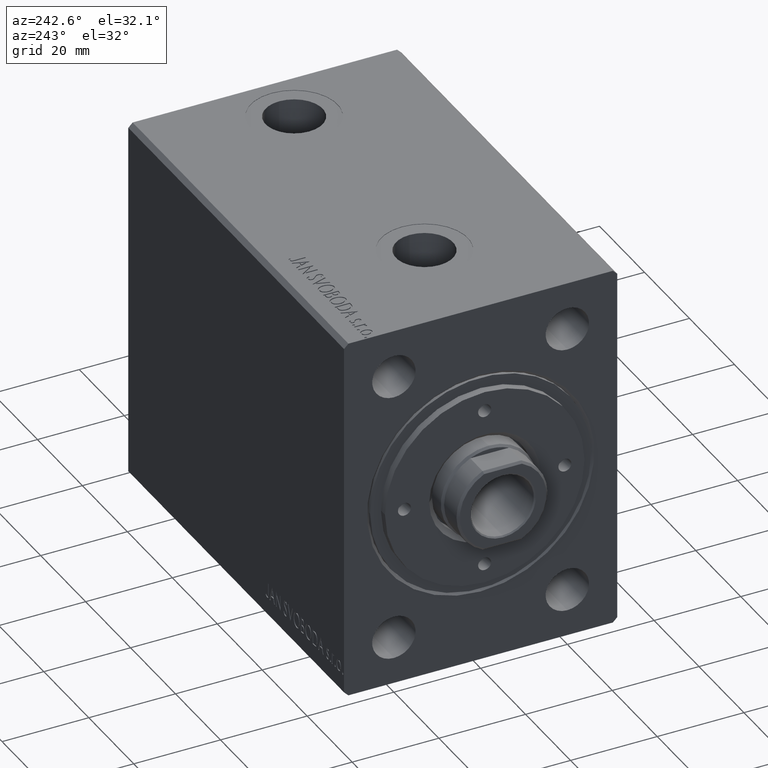
[diagram: clean part render]
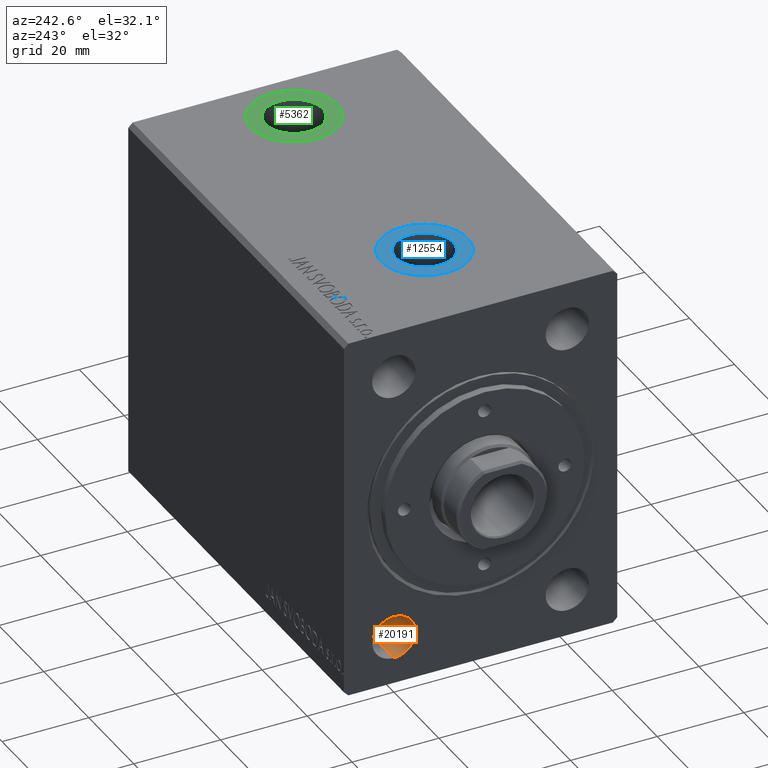
[diagram: same view with three faces highlighted in distinct colors, each labeled with its STEP entity id]
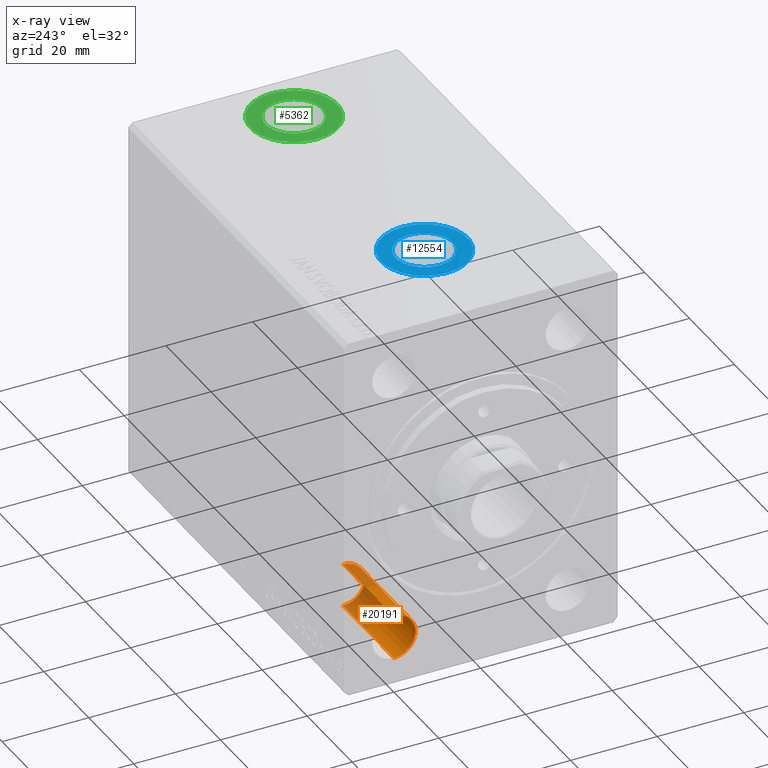
[diagram: x-ray of the same camera — body ghosted, the three highlighted faces saturated]
A machine part, auxiliary view with three faces highlighted in distinct colors.
The next image is the same camera in x-ray (body ghosted, the three faces saturated) — at least one of them is partly hidden behind the body in this view.
Their STEP definitions:

[orange] entity #20191 — the highlighted cylindrical surface (edge-blend (fillet) strip) has radius 5 mm, axis along (-1, -0, -0).
#111 = DIRECTION ( 'NONE',  ( 0.000000000000000000, 0.000000000000000000, 1.000000000000000000 ) ) ;
#117 = VERTEX_POINT ( 'NONE', #15542 ) ;
#909 = DIRECTION ( 'NONE',  ( -1.000000000000000000, -0.000000000000000000, -0.000000000000000000 ) ) ;
#3813 = CARTESIAN_POINT ( 'NONE',  ( 1.224646799147350495E-16, 19.99999999999999645, -31.50000000000000000 ) ) ;
#4249 = LINE ( 'NONE', #31413, #11044 ) ;
#6271 = ORIENTED_EDGE ( 'NONE', *, *, #33155, .T. ) ;
#6534 = CARTESIAN_POINT ( 'NONE',  ( 1.224646799147350495E-16, 19.99999999999999645, -36.50000000000000000 ) ) ;
#6992 = VERTEX_POINT ( 'NONE', #16369 ) ;
#7603 = DIRECTION ( 'NONE',  ( -1.000000000000000000, -0.000000000000000000, -0.000000000000000000 ) ) ;
#7683 = FACE_OUTER_BOUND ( 'NONE', #32438, .T. ) ;
#9516 = VERTEX_POINT ( 'NONE', #6534 ) ;
#11044 = VECTOR ( 'NONE', #909, 1000.000000000000000 ) ;
#11850 = EDGE_CURVE ( 'NONE', #6992, #117, #36429, .T. ) ;
#12815 = CARTESIAN_POINT ( 'NONE',  ( 0.000000000000000000, 19.99999999999999645, -26.50000000000000355 ) ) ;
#13233 = DIRECTION ( 'NONE',  ( -1.000000000000000000, -0.000000000000000000, -0.000000000000000000 ) ) ;
#13696 = DIRECTION ( 'NONE',  ( -1.000000000000000000, -0.000000000000000000, -0.000000000000000000 ) ) ;
#14935 = DIRECTION ( 'NONE',  ( 0.000000000000000000, 0.000000000000000000, 1.000000000000000000 ) ) ;
#15542 = CARTESIAN_POINT ( 'NONE',  ( 1.224646799147350495E-16, 19.99999999999999645, -26.50000000000000355 ) ) ;
#15658 = AXIS2_PLACEMENT_3D ( 'NONE', #24826, #13696, #111 ) ;
#16369 = CARTESIAN_POINT ( 'NONE',  ( 22.67000000000000171, 19.99999999999999645, -26.50000000000000711 ) ) ;
#18136 = CYLINDRICAL_SURFACE ( 'NONE', #15658, 4.999999999999997335 ) ;
#19472 = DIRECTION ( 'NONE',  ( 0.000000000000000000, 0.000000000000000000, 1.000000000000000000 ) ) ;
#20191 = ADVANCED_FACE ( 'NONE', ( #7683 ), #18136, .F. ) ;
#21897 = EDGE_CURVE ( 'NONE', #43128, #6992, #39875, .T. ) ;
#23285 = DIRECTION ( 'NONE',  ( -1.000000000000000000, -0.000000000000000000, -0.000000000000000000 ) ) ;
#23469 = CARTESIAN_POINT ( 'NONE',  ( 22.67000000000000171, 19.99999999999999645, -31.50000000000000000 ) ) ;
#24555 = AXIS2_PLACEMENT_3D ( 'NONE', #3813, #7603, #14935 ) ;
#24826 = CARTESIAN_POINT ( 'NONE',  ( 0.000000000000000000, 19.99999999999999645, -31.50000000000000000 ) ) ;
#25116 = VECTOR ( 'NONE', #23285, 1000.000000000000000 ) ;
#27614 = ORIENTED_EDGE ( 'NONE', *, *, #11850, .F. ) ;
#31413 = CARTESIAN_POINT ( 'NONE',  ( 0.000000000000000000, 19.99999999999999645, -36.50000000000000000 ) ) ;
#32054 = AXIS2_PLACEMENT_3D ( 'NONE', #23469, #13233, #19472 ) ;
#32438 = EDGE_LOOP ( 'NONE', ( #42371, #6271, #34800, #27614 ) ) ;
#33111 = EDGE_CURVE ( 'NONE', #9516, #117, #43767, .T. ) ;
#33155 = EDGE_CURVE ( 'NONE', #43128, #9516, #4249, .T. ) ;
#34800 = ORIENTED_EDGE ( 'NONE', *, *, #33111, .T. ) ;
#34830 = CARTESIAN_POINT ( 'NONE',  ( 22.67000000000000171, 19.99999999999999645, -36.49999999999999289 ) ) ;
#36429 = LINE ( 'NONE', #12815, #25116 ) ;
#39875 = CIRCLE ( 'NONE', #32054, 4.999999999999993783 ) ;
#42371 = ORIENTED_EDGE ( 'NONE', *, *, #21897, .F. ) ;
#43128 = VERTEX_POINT ( 'NONE', #34830 ) ;
#43767 = CIRCLE ( 'NONE', #24555, 4.999999999999997335 ) ;

[blue] entity #12554 — the highlighted planar face has unit normal (0, 0, 1).
#1381 = EDGE_LOOP ( 'NONE', ( #39281, #9738 ) ) ;
#2047 = FACE_OUTER_BOUND ( 'NONE', #39813, .T. ) ;
#2261 = DIRECTION ( 'NONE',  ( 0.000000000000000000, 0.000000000000000000, 1.000000000000000000 ) ) ;
#2646 = AXIS2_PLACEMENT_3D ( 'NONE', #8284, #2261, #32976 ) ;
#8284 = CARTESIAN_POINT ( 'NONE',  ( 25.00000000000000000, 0.000000000000000000, 42.39999999999999147 ) ) ;
#8624 = ORIENTED_EDGE ( 'NONE', *, *, #42581, .T. ) ;
#8947 = PLANE ( 'NONE',  #42930 ) ;
#9352 = CARTESIAN_POINT ( 'NONE',  ( 31.58000000000000540, 0.000000000000000000, 42.39999999999999147 ) ) ;
#9738 = ORIENTED_EDGE ( 'NONE', *, *, #16267, .F. ) ;
#10504 = ORIENTED_EDGE ( 'NONE', *, *, #25021, .T. ) ;
#10707 = CARTESIAN_POINT ( 'NONE',  ( 25.00000000000000000, 0.000000000000000000, 42.39999999999999147 ) ) ;
#11319 = CARTESIAN_POINT ( 'NONE',  ( 35.00000000000000000, 0.000000000000000000, 42.39999999999999147 ) ) ;
#11987 = CARTESIAN_POINT ( 'NONE',  ( 15.00000000000000178, 1.224646799147353256E-15, 42.39999999999999147 ) ) ;
#12554 = ADVANCED_FACE ( 'NONE', ( #43682, #2047 ), #8947, .T. ) ;
#14213 = AXIS2_PLACEMENT_3D ( 'NONE', #10707, #40340, #41223 ) ;
#16267 = EDGE_CURVE ( 'NONE', #42520, #23358, #17767, .T. ) ;
#16719 = VERTEX_POINT ( 'NONE', #11319 ) ;
#17191 = DIRECTION ( 'NONE',  ( 1.000000000000000000, 0.000000000000000000, 0.000000000000000000 ) ) ;
#17414 = CARTESIAN_POINT ( 'NONE',  ( 25.00000000000000000, 0.000000000000000000, 42.39999999999999147 ) ) ;
#17767 = CIRCLE ( 'NONE', #14213, 6.580000000000002736 ) ;
#19399 = CIRCLE ( 'NONE', #30782, 6.580000000000002736 ) ;
#20665 = CARTESIAN_POINT ( 'NONE',  ( 25.00000000000000000, 0.000000000000000000, 42.39999999999999147 ) ) ;
#23358 = VERTEX_POINT ( 'NONE', #9352 ) ;
#24451 = DIRECTION ( 'NONE',  ( 0.000000000000000000, 0.000000000000000000, 1.000000000000000000 ) ) ;
#25021 = EDGE_CURVE ( 'NONE', #41049, #16719, #30725, .T. ) ;
#26931 = EDGE_CURVE ( 'NONE', #23358, #42520, #19399, .T. ) ;
#30725 = CIRCLE ( 'NONE', #41425, 10.00000000000000178 ) ;
#30782 = AXIS2_PLACEMENT_3D ( 'NONE', #17414, #40357, #17191 ) ;
#32318 = CARTESIAN_POINT ( 'NONE',  ( 18.41999999999999815, 8.058175938389585489E-16, 42.39999999999999147 ) ) ;
#32976 = DIRECTION ( 'NONE',  ( 1.000000000000000000, 0.000000000000000000, 0.000000000000000000 ) ) ;
#36542 = DIRECTION ( 'NONE',  ( 1.000000000000000000, 0.000000000000000000, -0.000000000000000000 ) ) ;
#36778 = CIRCLE ( 'NONE', #2646, 10.00000000000000178 ) ;
#38037 = DIRECTION ( 'NONE',  ( 1.000000000000000000, 0.000000000000000000, 0.000000000000000000 ) ) ;
#39281 = ORIENTED_EDGE ( 'NONE', *, *, #26931, .F. ) ;
#39452 = CARTESIAN_POINT ( 'NONE',  ( 25.00000000000000000, 0.000000000000000000, 42.39999999999999147 ) ) ;
#39813 = EDGE_LOOP ( 'NONE', ( #8624, #10504 ) ) ;
#40340 = DIRECTION ( 'NONE',  ( 0.000000000000000000, 0.000000000000000000, 1.000000000000000000 ) ) ;
#40357 = DIRECTION ( 'NONE',  ( 0.000000000000000000, 0.000000000000000000, 1.000000000000000000 ) ) ;
#41049 = VERTEX_POINT ( 'NONE', #11987 ) ;
#41223 = DIRECTION ( 'NONE',  ( 1.000000000000000000, 0.000000000000000000, 0.000000000000000000 ) ) ;
#41425 = AXIS2_PLACEMENT_3D ( 'NONE', #20665, #24451, #38037 ) ;
#42520 = VERTEX_POINT ( 'NONE', #32318 ) ;
#42581 = EDGE_CURVE ( 'NONE', #16719, #41049, #36778, .T. ) ;
#42930 = AXIS2_PLACEMENT_3D ( 'NONE', #39452, #43457, #36542 ) ;
#43457 = DIRECTION ( 'NONE',  ( 0.000000000000000000, 0.000000000000000000, 1.000000000000000000 ) ) ;
#43682 = FACE_BOUND ( 'NONE', #1381, .T. ) ;

[green] entity #5362 — the highlighted planar face has unit normal (0, 0, 1).
#1030 = DIRECTION ( 'NONE',  ( 0.000000000000000000, 0.000000000000000000, 1.000000000000000000 ) ) ;
#1109 = ORIENTED_EDGE ( 'NONE', *, *, #8288, .T. ) ;
#1248 = FACE_BOUND ( 'NONE', #29262, .T. ) ;
#2737 = CARTESIAN_POINT ( 'NONE',  ( 83.00000000000000000, 5.372953186874616010E-16, 42.39999999999999147 ) ) ;
#4214 = DIRECTION ( 'NONE',  ( 1.000000000000000000, 0.000000000000000000, 0.000000000000000000 ) ) ;
#5323 = EDGE_LOOP ( 'NONE', ( #1109, #30853 ) ) ;
#5362 = ADVANCED_FACE ( 'NONE', ( #1248, #42453 ), #15270, .T. ) ;
#6526 = EDGE_CURVE ( 'NONE', #25494, #30915, #31508, .T. ) ;
#8288 = EDGE_CURVE ( 'NONE', #37376, #23754, #33559, .T. ) ;
#10694 = EDGE_CURVE ( 'NONE', #30915, #25494, #34331, .T. ) ;
#11993 = CIRCLE ( 'NONE', #34755, 10.00000000000000888 ) ;
#12973 = DIRECTION ( 'NONE',  ( 0.000000000000000000, 0.000000000000000000, 1.000000000000000000 ) ) ;
#13502 = ORIENTED_EDGE ( 'NONE', *, *, #10694, .F. ) ;
#13522 = CARTESIAN_POINT ( 'NONE',  ( 73.00000000000000000, 1.761942117834816435E-15, 42.39999999999999147 ) ) ;
#13653 = EDGE_CURVE ( 'NONE', #23754, #37376, #11993, .T. ) ;
#15270 = PLANE ( 'NONE',  #42867 ) ;
#18807 = ORIENTED_EDGE ( 'NONE', *, *, #6526, .F. ) ;
#20065 = AXIS2_PLACEMENT_3D ( 'NONE', #38891, #35756, #31978 ) ;
#21512 = DIRECTION ( 'NONE',  ( 1.000000000000000000, 0.000000000000000000, -0.000000000000000000 ) ) ;
#23754 = VERTEX_POINT ( 'NONE', #13522 ) ;
#25494 = VERTEX_POINT ( 'NONE', #41448 ) ;
#25596 = DIRECTION ( 'NONE',  ( 1.000000000000000000, 0.000000000000000000, 0.000000000000000000 ) ) ;
#25810 = AXIS2_PLACEMENT_3D ( 'NONE', #2737, #12973, #4214 ) ;
#28490 = CARTESIAN_POINT ( 'NONE',  ( 83.00000000000000000, 5.372953186874616010E-16, 42.39999999999999147 ) ) ;
#29262 = EDGE_LOOP ( 'NONE', ( #13502, #18807 ) ) ;
#29596 = CARTESIAN_POINT ( 'NONE',  ( 83.00000000000000000, 5.372953186874619954E-16, 42.39999999999999147 ) ) ;
#30853 = ORIENTED_EDGE ( 'NONE', *, *, #13653, .T. ) ;
#30915 = VERTEX_POINT ( 'NONE', #41623 ) ;
#31508 = CIRCLE ( 'NONE', #25810, 6.580000000000002736 ) ;
#31978 = DIRECTION ( 'NONE',  ( 1.000000000000000000, 0.000000000000000000, 0.000000000000000000 ) ) ;
#33559 = CIRCLE ( 'NONE', #20065, 10.00000000000000888 ) ;
#34331 = CIRCLE ( 'NONE', #42172, 6.580000000000002736 ) ;
#34755 = AXIS2_PLACEMENT_3D ( 'NONE', #29596, #39828, #25596 ) ;
#35523 = CARTESIAN_POINT ( 'NONE',  ( 83.00000000000000000, 5.372953186874619954E-16, 42.39999999999999147 ) ) ;
#35756 = DIRECTION ( 'NONE',  ( 0.000000000000000000, 0.000000000000000000, 1.000000000000000000 ) ) ;
#37376 = VERTEX_POINT ( 'NONE', #44069 ) ;
#38891 = CARTESIAN_POINT ( 'NONE',  ( 83.00000000000000000, 5.372953186874619954E-16, 42.39999999999999147 ) ) ;
#39828 = DIRECTION ( 'NONE',  ( 0.000000000000000000, 0.000000000000000000, 1.000000000000000000 ) ) ;
#41448 = CARTESIAN_POINT ( 'NONE',  ( 76.42000000000000171, 1.343112912526420051E-15, 42.39999999999999147 ) ) ;
#41623 = CARTESIAN_POINT ( 'NONE',  ( 89.58000000000001251, 5.372953186874616010E-16, 42.39999999999999147 ) ) ;
#42087 = DIRECTION ( 'NONE',  ( 0.000000000000000000, 0.000000000000000000, 1.000000000000000000 ) ) ;
#42172 = AXIS2_PLACEMENT_3D ( 'NONE', #28490, #42087, #42963 ) ;
#42453 = FACE_OUTER_BOUND ( 'NONE', #5323, .T. ) ;
#42867 = AXIS2_PLACEMENT_3D ( 'NONE', #35523, #1030, #21512 ) ;
#42963 = DIRECTION ( 'NONE',  ( 1.000000000000000000, 0.000000000000000000, 0.000000000000000000 ) ) ;
#44069 = CARTESIAN_POINT ( 'NONE',  ( 93.00000000000001421, 5.372953186874619954E-16, 42.39999999999999147 ) ) ;